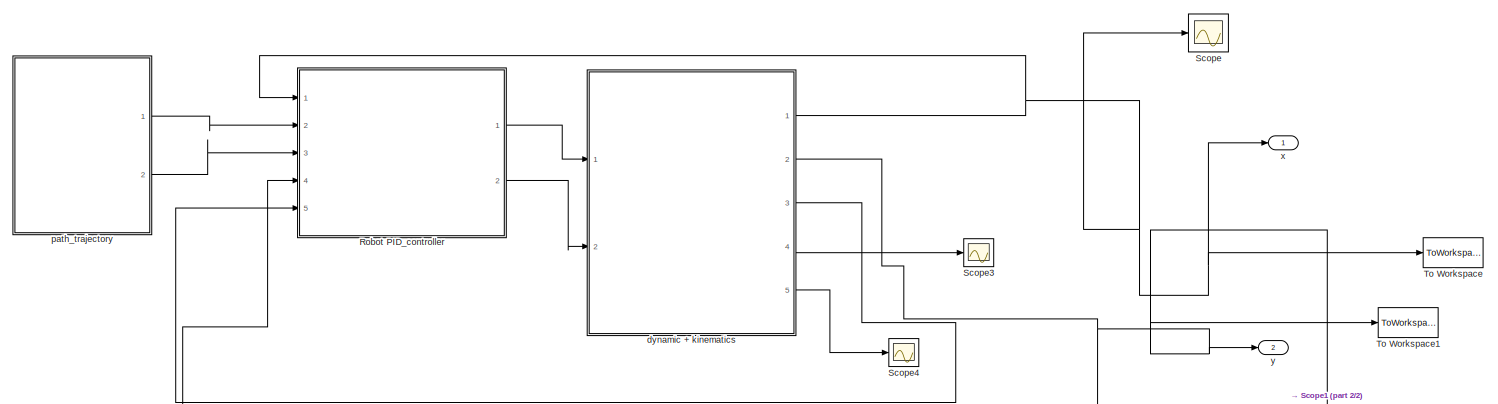
[diagram: root canvas - part 1/2, most of the canvas]
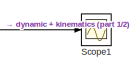
[diagram: root canvas - part 2/2, bottom right region]
MODEL slx_2c0997b387e1
KIND model
CONFIG AbsTol = auto
CONFIG EnableMultiTasking = off
CONFIG FixedStep = auto
CONFIG MaxStep = auto
CONFIG MinStep = auto
CONFIG RelTol = 1e-3
CONFIG SampleTimeConstraint = Unconstrained
CONFIG Solver = VariableStepAuto
CONFIG SolverName = VariableStepAuto
CONFIG StartTime = 0.0
CONFIG StopTime = 10.0
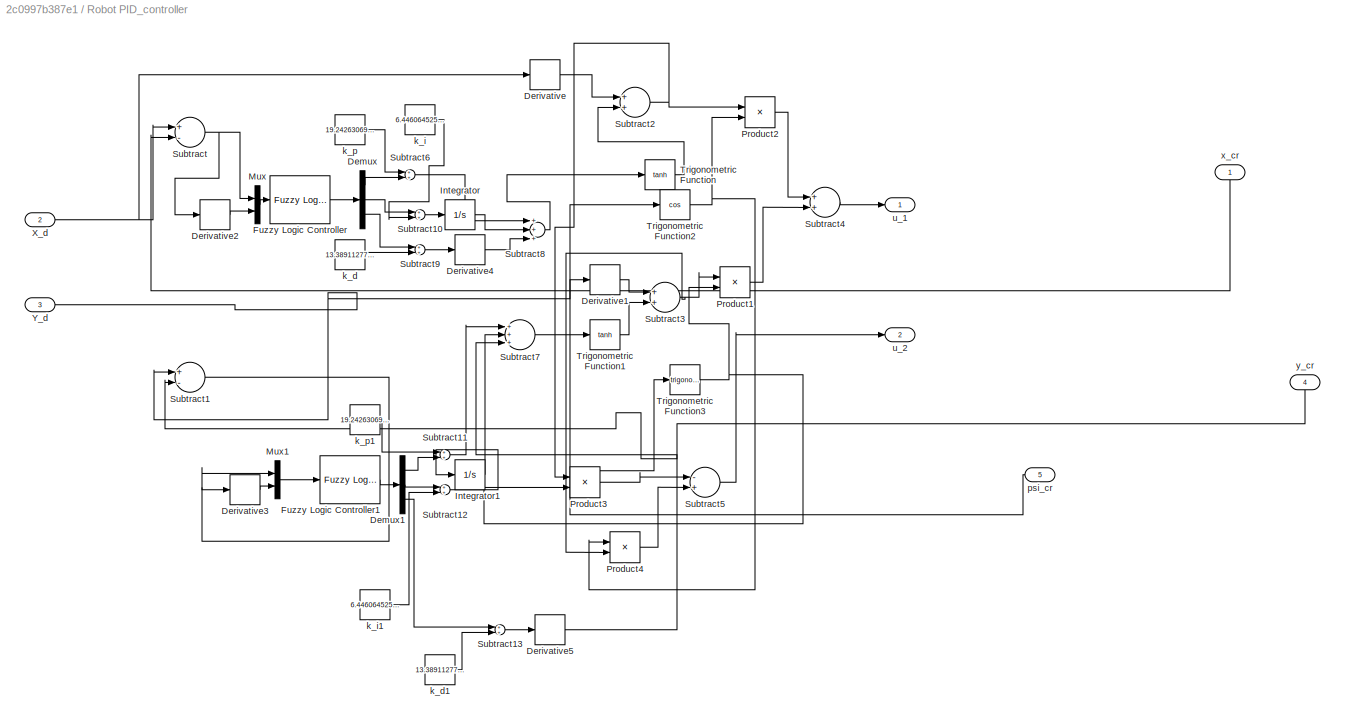
BLOCK [SubSystem] Robot PID_controller
  Ports = [5, 2]
  RequestExecContextInheritance = off
  Variant = off
BLOCK [Demux] Robot PID_controller/Demux
  DisplayOption = bar
  Outputs = 3
  Ports = [1, 3]
BLOCK [Demux] Robot PID_controller/Demux1
  DisplayOption = bar
  Outputs = 3
  Ports = [1, 3]
BLOCK [Derivative] Robot PID_controller/Derivative
BLOCK [Derivative] Robot PID_controller/Derivative1
BLOCK [Derivative] Robot PID_controller/Derivative2
BLOCK [Derivative] Robot PID_controller/Derivative3
BLOCK [Derivative] Robot PID_controller/Derivative4
BLOCK [Derivative] Robot PID_controller/Derivative5
BLOCK [Reference] Robot PID_controller/Fuzzy Logic Controller  REF=fuzblock/Fuzzy Logic   (lib defined in mdl_858b3b3e7478)
Controller
  Ports = [1, 1]
  SourceBlock = fuzblock/Fuzzy Logic \nController
  SourceType = FIS
BLOCK [Reference] Robot PID_controller/Fuzzy Logic Controller1  REF=fuzblock/Fuzzy Logic   (lib defined in mdl_858b3b3e7478)
Controller
  Ports = [1, 1]
  SourceBlock = fuzblock/Fuzzy Logic \nController
  SourceType = FIS
BLOCK [Integrator] Robot PID_controller/Integrator
  Ports = [1, 1]
BLOCK [Integrator] Robot PID_controller/Integrator1
  Ports = [1, 1]
BLOCK [Mux] Robot PID_controller/Mux
  DisplayOption = bar
  Inputs = 2
  Ports = [2, 1]
BLOCK [Mux] Robot PID_controller/Mux1
  DisplayOption = bar
  Inputs = 2
  Ports = [2, 1]
BLOCK [Product] Robot PID_controller/Product1
  InputSameDT = off
  OutDataTypeStr = Inherit: Inherit via internal rule
  Ports = [2, 1]
  RndMeth = Floor
  SaturateOnIntegerOverflow = off
BLOCK [Product] Robot PID_controller/Product2
  InputSameDT = off
  OutDataTypeStr = Inherit: Inherit via internal rule
  Ports = [2, 1]
  RndMeth = Floor
  SaturateOnIntegerOverflow = off
BLOCK [Product] Robot PID_controller/Product3
  InputSameDT = off
  OutDataTypeStr = Inherit: Inherit via internal rule
  Ports = [2, 1]
  RndMeth = Floor
  SaturateOnIntegerOverflow = off
BLOCK [Product] Robot PID_controller/Product4
  InputSameDT = off
  OutDataTypeStr = Inherit: Inherit via internal rule
  Ports = [2, 1]
  RndMeth = Floor
  SaturateOnIntegerOverflow = off
BLOCK [Sum] Robot PID_controller/Subtract
  InputSameDT = off
  Inputs = +-
  OutDataTypeStr = Inherit: Inherit via internal rule
  Ports = [2, 1]
  SaturateOnIntegerOverflow = off
BLOCK [Sum] Robot PID_controller/Subtract1
  InputSameDT = off
  Inputs = +-
  OutDataTypeStr = Inherit: Inherit via internal rule
  Ports = [2, 1]
  SaturateOnIntegerOverflow = off
BLOCK [Sum] Robot PID_controller/Subtract10
  InputSameDT = off
  OutDataTypeStr = Inherit: Inherit via internal rule
  Ports = [2, 1]
  SaturateOnIntegerOverflow = off
BLOCK [Sum] Robot PID_controller/Subtract11
  InputSameDT = off
  OutDataTypeStr = Inherit: Inherit via internal rule
  Ports = [2, 1]
  SaturateOnIntegerOverflow = off
BLOCK [Sum] Robot PID_controller/Subtract12
  InputSameDT = off
  OutDataTypeStr = Inherit: Inherit via internal rule
  Ports = [2, 1]
  SaturateOnIntegerOverflow = off
BLOCK [Sum] Robot PID_controller/Subtract13
  InputSameDT = off
  OutDataTypeStr = Inherit: Inherit via internal rule
  Ports = [2, 1]
  SaturateOnIntegerOverflow = off
BLOCK [Sum] Robot PID_controller/Subtract2
  InputSameDT = off
  OutDataTypeStr = Inherit: Inherit via internal rule
  Ports = [2, 1]
  SaturateOnIntegerOverflow = off
BLOCK [Sum] Robot PID_controller/Subtract3
  InputSameDT = off
  OutDataTypeStr = Inherit: Inherit via internal rule
  Ports = [2, 1]
  SaturateOnIntegerOverflow = off
BLOCK [Sum] Robot PID_controller/Subtract4
  InputSameDT = off
  OutDataTypeStr = Inherit: Inherit via internal rule
  Ports = [2, 1]
  SaturateOnIntegerOverflow = off
BLOCK [Sum] Robot PID_controller/Subtract5
  InputSameDT = off
  Inputs = -+
  OutDataTypeStr = Inherit: Inherit via internal rule
  Ports = [2, 1]
  SaturateOnIntegerOverflow = off
BLOCK [Sum] Robot PID_controller/Subtract6
  InputSameDT = off
  OutDataTypeStr = Inherit: Inherit via internal rule
  Ports = [2, 1]
  SaturateOnIntegerOverflow = off
BLOCK [Sum] Robot PID_controller/Subtract7
  InputSameDT = off
  Inputs = +++
  OutDataTypeStr = Inherit: Inherit via internal rule
  Ports = [3, 1]
  SaturateOnIntegerOverflow = off
BLOCK [Sum] Robot PID_controller/Subtract8
  InputSameDT = off
  Inputs = +++
  OutDataTypeStr = Inherit: Inherit via internal rule
  Ports = [3, 1]
  SaturateOnIntegerOverflow = off
BLOCK [Sum] Robot PID_controller/Subtract9
  InputSameDT = off
  OutDataTypeStr = Inherit: Inherit via internal rule
  Ports = [2, 1]
  SaturateOnIntegerOverflow = off
BLOCK [Trigonometry] Robot PID_controller/Trigonometric Function
  Operator = tanh
  Ports = [1, 1]
BLOCK [Trigonometry] Robot PID_controller/Trigonometric Function1
  Operator = tanh
  Ports = [1, 1]
BLOCK [Trigonometry] Robot PID_controller/Trigonometric Function2
  Operator = cos
  Ports = [1, 1]
BLOCK [Trigonometry] Robot PID_controller/Trigonometric Function3
  Ports = [1, 1]
BLOCK [Inport] Robot PID_controller/X_d
  IconDisplay = Port number
  Port = 2
BLOCK [Inport] Robot PID_controller/Y_d
  IconDisplay = Port number
  Port = 3
BLOCK [Constant] Robot PID_controller/k_d
  Value = 13.3891127705078
BLOCK [Constant] Robot PID_controller/k_d1
  Value = 13.3891127705078
BLOCK [Constant] Robot PID_controller/k_i
  Value = 6.44606452586056
BLOCK [Constant] Robot PID_controller/k_i1
  Value = 6.44606452586056
BLOCK [Constant] Robot PID_controller/k_p
  Value = 19.242630699917
BLOCK [Constant] Robot PID_controller/k_p1
  Value = 19.242630699917
BLOCK [Inport] Robot PID_controller/psi_cr
  IconDisplay = Port number
  Port = 5
BLOCK [Outport] Robot PID_controller/u_1
  IconDisplay = Port number
BLOCK [Outport] Robot PID_controller/u_2
  IconDisplay = Port number
  Port = 2
BLOCK [Inport] Robot PID_controller/x_cr
  IconDisplay = Port number
BLOCK [Inport] Robot PID_controller/y_cr
  IconDisplay = Port number
  Port = 4
BLOCK [Scope] Scope
  NumInputPorts = 1
  Ports = [1]
  ScopeSpecificationString = Simulink.scopes.TimeScopeBlockCfg('CurrentConfiguration', extmgr.ConfigurationSet(extmgr.Configuration('Core','General UI',true),extmgr.Configuration('Core','Source UI',true),extmgr.Configuration('Sources','WiredSimulink',true,'DataLoggingVariableName','ScopeData1','DataLoggingLimitDataPoints',true,'DataLoggingSaveFormat','Array','DataLoggingDecimation','1','DataLoggingDecimateData',true),extmgr.C...<+1507ch>
BLOCK [Scope] Scope1
  NumInputPorts = 1
  Ports = [1]
  ScopeSpecificationString = C++SS(StrPVP('SaveName','ScopeData2'),StrPVP('LimitDataPoints','on'),StrPVP('DataFormat','Array'),StrPVP('Decimation','1'),StrPVP('BlockParamSampleInput','off'))
BLOCK [Scope] Scope3
  NumInputPorts = 1
  Ports = [1]
  ScopeSpecificationString = Simulink.scopes.TimeScopeBlockCfg('CurrentConfiguration', extmgr.ConfigurationSet(extmgr.Configuration('Core','General UI',true),extmgr.Configuration('Core','Source UI',true),extmgr.Configuration('Sources','WiredSimulink',true,'DataLoggingVariableName','ScopeData1','DataLoggingLimitDataPoints',true,'DataLoggingSaveFormat','Array','DataLoggingDecimation','1','DataLoggingDecimateData',true),extmgr.C...<+1507ch>
BLOCK [Scope] Scope4
  NumInputPorts = 1
  Ports = [1]
  ScopeSpecificationString = Simulink.scopes.TimeScopeBlockCfg('CurrentConfiguration', extmgr.ConfigurationSet(extmgr.Configuration('Core','General UI',true),extmgr.Configuration('Core','Source UI',true),extmgr.Configuration('Sources','WiredSimulink',true,'DataLoggingVariableName','ScopeData2','DataLoggingLimitDataPoints',true,'DataLoggingSaveFormat','Array','DataLoggingDecimation','1','DataLoggingDecimateData',true),extmgr.C...<+1507ch>
BLOCK [ToWorkspace] To Workspace
  FixptAsFi = on
  MaxDataPoints = inf
  Ports = [1]
  SampleTime = -1
  Save2DSignal = 3-D array (concatenate along third dimension)
  VariableName = x
BLOCK [ToWorkspace] To Workspace1
  FixptAsFi = on
  MaxDataPoints = inf
  Ports = [1]
  SampleTime = -1
  Save2DSignal = 3-D array (concatenate along third dimension)
  VariableName = y
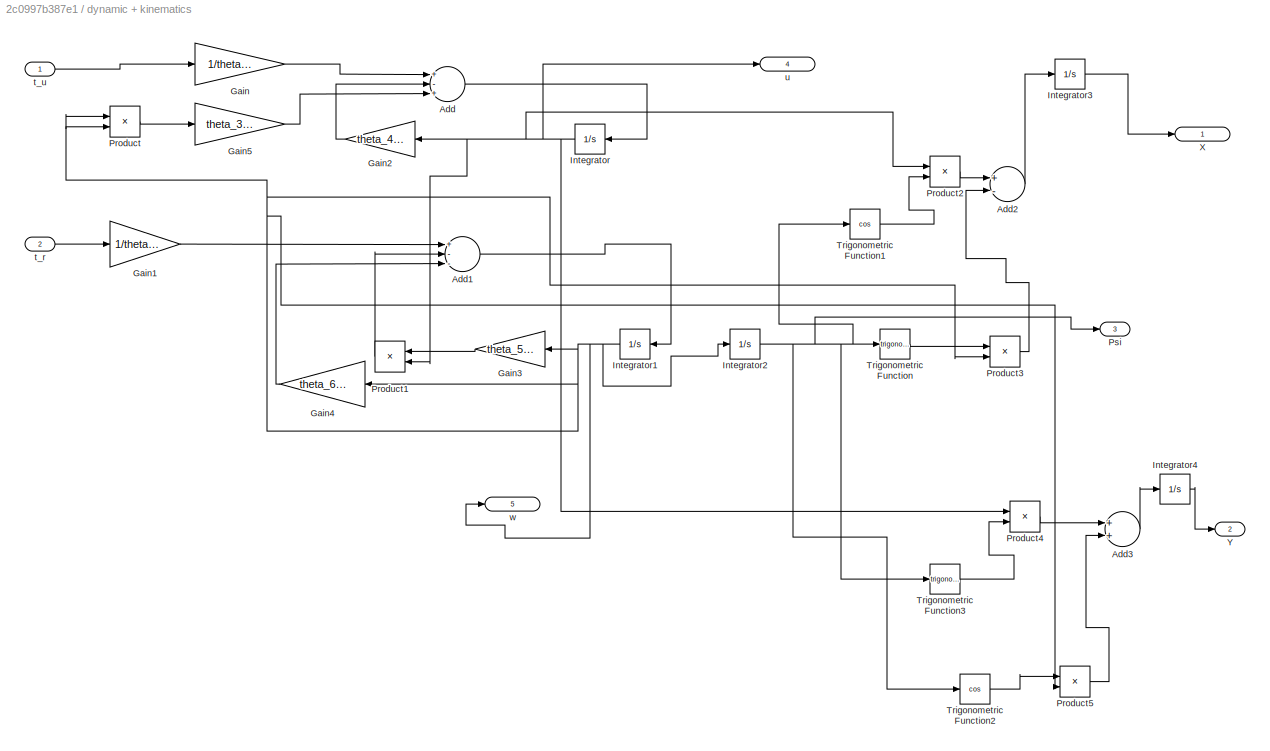
BLOCK [SubSystem] dynamic + kinematics 
  Ports = [2, 5]
  RequestExecContextInheritance = off
  Variant = off
BLOCK [Sum] dynamic + kinematics /Add
  InputSameDT = off
  Inputs = +-+
  OutDataTypeStr = Inherit: Inherit via internal rule
  Ports = [3, 1]
  SaturateOnIntegerOverflow = off
BLOCK [Sum] dynamic + kinematics /Add1
  InputSameDT = off
  Inputs = +--
  OutDataTypeStr = Inherit: Inherit via internal rule
  Ports = [3, 1]
  SaturateOnIntegerOverflow = off
BLOCK [Sum] dynamic + kinematics /Add2
  InputSameDT = off
  Inputs = +-
  OutDataTypeStr = Inherit: Inherit via internal rule
  Ports = [2, 1]
  SaturateOnIntegerOverflow = off
BLOCK [Sum] dynamic + kinematics /Add3
  InputSameDT = off
  OutDataTypeStr = Inherit: Inherit via internal rule
  Ports = [2, 1]
  SaturateOnIntegerOverflow = off
BLOCK [Gain] dynamic + kinematics /Gain
  Gain = 1/theta_1
  OutDataTypeStr = Inherit: Inherit via internal rule
  ParamDataTypeStr = Inherit: Inherit via internal rule
  SaturateOnIntegerOverflow = off
BLOCK [Gain] dynamic + kinematics /Gain1
  Gain = 1/theta_2
  OutDataTypeStr = Inherit: Inherit via internal rule
  ParamDataTypeStr = Inherit: Inherit via internal rule
  SaturateOnIntegerOverflow = off
BLOCK [Gain] dynamic + kinematics /Gain2
  Gain = theta_4_1
  OutDataTypeStr = Inherit: Inherit via internal rule
  ParamDataTypeStr = Inherit: Inherit via internal rule
  SaturateOnIntegerOverflow = off
BLOCK [Gain] dynamic + kinematics /Gain3
  Gain = theta_5_2
  OutDataTypeStr = Inherit: Inherit via internal rule
  ParamDataTypeStr = Inherit: Inherit via internal rule
  SaturateOnIntegerOverflow = off
BLOCK [Gain] dynamic + kinematics /Gain4
  Gain = theta_6_2
  OutDataTypeStr = Inherit: Inherit via internal rule
  ParamDataTypeStr = Inherit: Inherit via internal rule
  SaturateOnIntegerOverflow = off
BLOCK [Gain] dynamic + kinematics /Gain5
  Gain = theta_3_1
  OutDataTypeStr = Inherit: Inherit via internal rule
  ParamDataTypeStr = Inherit: Inherit via internal rule
  SaturateOnIntegerOverflow = off
BLOCK [Integrator] dynamic + kinematics /Integrator
  Ports = [1, 1]
BLOCK [Integrator] dynamic + kinematics /Integrator1
  Ports = [1, 1]
BLOCK [Integrator] dynamic + kinematics /Integrator2
  Ports = [1, 1]
BLOCK [Integrator] dynamic + kinematics /Integrator3
  Ports = [1, 1]
BLOCK [Integrator] dynamic + kinematics /Integrator4
  Ports = [1, 1]
BLOCK [Product] dynamic + kinematics /Product
  InputSameDT = off
  OutDataTypeStr = Inherit: Inherit via internal rule
  Ports = [2, 1]
  RndMeth = Floor
  SaturateOnIntegerOverflow = off
BLOCK [Product] dynamic + kinematics /Product1
  InputSameDT = off
  OutDataTypeStr = Inherit: Inherit via internal rule
  Ports = [2, 1]
  RndMeth = Floor
  SaturateOnIntegerOverflow = off
BLOCK [Product] dynamic + kinematics /Product2
  InputSameDT = off
  OutDataTypeStr = Inherit: Inherit via internal rule
  Ports = [2, 1]
  RndMeth = Floor
  SaturateOnIntegerOverflow = off
BLOCK [Product] dynamic + kinematics /Product3
  InputSameDT = off
  OutDataTypeStr = Inherit: Inherit via internal rule
  Ports = [2, 1]
  RndMeth = Floor
  SaturateOnIntegerOverflow = off
BLOCK [Product] dynamic + kinematics /Product4
  InputSameDT = off
  OutDataTypeStr = Inherit: Inherit via internal rule
  Ports = [2, 1]
  RndMeth = Floor
  SaturateOnIntegerOverflow = off
BLOCK [Product] dynamic + kinematics /Product5
  InputSameDT = off
  OutDataTypeStr = Inherit: Inherit via internal rule
  Ports = [2, 1]
  RndMeth = Floor
  SaturateOnIntegerOverflow = off
BLOCK [Outport] dynamic + kinematics /Psi
  IconDisplay = Port number
  Port = 3
BLOCK [Trigonometry] dynamic + kinematics /Trigonometric Function
  Ports = [1, 1]
BLOCK [Trigonometry] dynamic + kinematics /Trigonometric Function1
  Operator = cos
  Ports = [1, 1]
BLOCK [Trigonometry] dynamic + kinematics /Trigonometric Function2
  Operator = cos
  Ports = [1, 1]
BLOCK [Trigonometry] dynamic + kinematics /Trigonometric Function3
  Ports = [1, 1]
BLOCK [Outport] dynamic + kinematics /X
  IconDisplay = Port number
BLOCK [Outport] dynamic + kinematics /Y
  IconDisplay = Port number
  Port = 2
BLOCK [Inport] dynamic + kinematics /t_r
  IconDisplay = Port number
  Port = 2
BLOCK [Inport] dynamic + kinematics /t_u
  IconDisplay = Port number
BLOCK [Outport] dynamic + kinematics /u
  IconDisplay = Port number
  Port = 4
BLOCK [Outport] dynamic + kinematics /w
  IconDisplay = Port number
  Port = 5
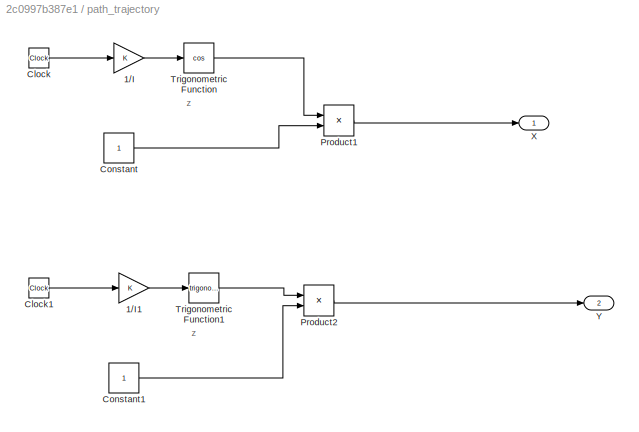
BLOCK [SubSystem] path_trajectory
  Ports = [0, 2]
  RequestExecContextInheritance = off
  Variant = off
BLOCK [Gain] path_trajectory/1//I
  OutDataTypeStr = Inherit: Inherit via internal rule
  ParamDataTypeStr = Inherit: Inherit via internal rule
  SaturateOnIntegerOverflow = off
BLOCK [Gain] path_trajectory/1//I1
  OutDataTypeStr = Inherit: Inherit via internal rule
  ParamDataTypeStr = Inherit: Inherit via internal rule
  SaturateOnIntegerOverflow = off
BLOCK [Clock] path_trajectory/Clock
BLOCK [Clock] path_trajectory/Clock1
BLOCK [Constant] path_trajectory/Constant
BLOCK [Constant] path_trajectory/Constant1
BLOCK [Product] path_trajectory/Product1
  InputSameDT = off
  OutDataTypeStr = Inherit: Inherit via internal rule
  Ports = [2, 1]
  RndMeth = Floor
  SaturateOnIntegerOverflow = off
BLOCK [Product] path_trajectory/Product2
  InputSameDT = off
  OutDataTypeStr = Inherit: Inherit via internal rule
  Ports = [2, 1]
  RndMeth = Floor
  SaturateOnIntegerOverflow = off
BLOCK [Trigonometry] path_trajectory/Trigonometric Function
  Operator = cos
  Ports = [1, 1]
BLOCK [Trigonometry] path_trajectory/Trigonometric Function1
  Ports = [1, 1]
BLOCK [Outport] path_trajectory/X
  IconDisplay = Port number
BLOCK [Outport] path_trajectory/Y
  IconDisplay = Port number
  Port = 2
BLOCK [Outport] x
  IconDisplay = Port number
BLOCK [Outport] y
  IconDisplay = Port number
  Port = 2
ANNOTATION path_trajectory: z
LINE Robot PID_controller/Demux1:1 -> Robot PID_controller/Subtract11:2
LINE Robot PID_controller/Demux1:2 -> Robot PID_controller/Subtract12:1
LINE Robot PID_controller/Demux1:3 -> Robot PID_controller/Subtract13:1
LINE Robot PID_controller/Demux:1 -> Robot PID_controller/Subtract6:2
LINE Robot PID_controller/Demux:2 -> Robot PID_controller/Subtract10:1
LINE Robot PID_controller/Demux:3 -> Robot PID_controller/Subtract9:1
LINE Robot PID_controller/Derivative1:1 -> Robot PID_controller/Subtract3:1
LINE Robot PID_controller/Derivative2:1 -> Robot PID_controller/Mux:2
LINE Robot PID_controller/Derivative3:1 -> Robot PID_controller/Mux1:2
LINE Robot PID_controller/Derivative4:1 -> Robot PID_controller/Subtract8:3
LINE Robot PID_controller/Derivative5:1 -> Robot PID_controller/Subtract7:3
LINE Robot PID_controller/Derivative:1 -> Robot PID_controller/Subtract2:1
LINE Robot PID_controller/Fuzzy Logic Controller1:1 -> Robot PID_controller/Demux1:1
LINE Robot PID_controller/Fuzzy Logic Controller:1 -> Robot PID_controller/Demux:1
LINE Robot PID_controller/Integrator1:1 -> Robot PID_controller/Subtract7:2
LINE Robot PID_controller/Integrator:1 -> Robot PID_controller/Subtract8:2
LINE Robot PID_controller/Mux1:1 -> Robot PID_controller/Fuzzy Logic Controller1:1
LINE Robot PID_controller/Mux:1 -> Robot PID_controller/Fuzzy Logic Controller:1
LINE Robot PID_controller/Product1:1 -> Robot PID_controller/Subtract4:2
LINE Robot PID_controller/Product2:1 -> Robot PID_controller/Subtract4:1
LINE Robot PID_controller/Product3:1 -> Robot PID_controller/Subtract5:1
LINE Robot PID_controller/Product4:1 -> Robot PID_controller/Subtract5:2
LINE Robot PID_controller/Subtract10:1 -> Robot PID_controller/Integrator:1
LINE Robot PID_controller/Subtract11:1 -> Robot PID_controller/Subtract7:1
LINE Robot PID_controller/Subtract12:1 -> Robot PID_controller/Integrator1:1
LINE Robot PID_controller/Subtract13:1 -> Robot PID_controller/Derivative5:1
NET Robot PID_controller/Subtract1:1 -> Robot PID_controller/Derivative3:1, Robot PID_controller/Mux1:1
NET Robot PID_controller/Subtract2:1 -> Robot PID_controller/Product2:1, Robot PID_controller/Product3:1
NET Robot PID_controller/Subtract3:1 -> Robot PID_controller/Product1:1, Robot PID_controller/Product4:2
LINE Robot PID_controller/Subtract4:1 -> Robot PID_controller/u_1:1
LINE Robot PID_controller/Subtract5:1 -> Robot PID_controller/u_2:1
LINE Robot PID_controller/Subtract6:1 -> Robot PID_controller/Subtract8:1
LINE Robot PID_controller/Subtract7:1 -> Robot PID_controller/Trigonometric Function1:1
LINE Robot PID_controller/Subtract8:1 -> Robot PID_controller/Trigonometric Function:1
LINE Robot PID_controller/Subtract9:1 -> Robot PID_controller/Derivative4:1
NET Robot PID_controller/Subtract:1 -> Robot PID_controller/Derivative2:1, Robot PID_controller/Mux:1
LINE Robot PID_controller/Trigonometric Function1:1 -> Robot PID_controller/Subtract3:2
NET Robot PID_controller/Trigonometric Function2:1 -> Robot PID_controller/Product2:2, Robot PID_controller/Product4:1
NET Robot PID_controller/Trigonometric Function3:1 -> Robot PID_controller/Product1:2, Robot PID_controller/Product3:2
LINE Robot PID_controller/Trigonometric Function:1 -> Robot PID_controller/Subtract2:2
NET Robot PID_controller/X_d:1 -> Robot PID_controller/Derivative:1, Robot PID_controller/Subtract:1
NET Robot PID_controller/Y_d:1 -> Robot PID_controller/Derivative1:1, Robot PID_controller/Subtract1:1
LINE Robot PID_controller/k_d1:1 -> Robot PID_controller/Subtract13:2
LINE Robot PID_controller/k_d:1 -> Robot PID_controller/Subtract9:2
LINE Robot PID_controller/k_i1:1 -> Robot PID_controller/Subtract12:2
LINE Robot PID_controller/k_i:1 -> Robot PID_controller/Subtract10:2
LINE Robot PID_controller/k_p1:1 -> Robot PID_controller/Subtract11:1
LINE Robot PID_controller/k_p:1 -> Robot PID_controller/Subtract6:1
NET Robot PID_controller/psi_cr:1 -> Robot PID_controller/Trigonometric Function2:1, Robot PID_controller/Trigonometric Function3:1
LINE Robot PID_controller/x_cr:1 -> Robot PID_controller/Subtract:2
LINE Robot PID_controller/y_cr:1 -> Robot PID_controller/Subtract1:2
LINE Robot PID_controller:1 -> dynamic + kinematics :1
LINE Robot PID_controller:2 -> dynamic + kinematics :2
LINE dynamic + kinematics /Add1:1 -> dynamic + kinematics /Integrator1:1
LINE dynamic + kinematics /Add2:1 -> dynamic + kinematics /Integrator3:1
LINE dynamic + kinematics /Add3:1 -> dynamic + kinematics /Integrator4:1
LINE dynamic + kinematics /Add:1 -> dynamic + kinematics /Integrator:1
LINE dynamic + kinematics /Gain1:1 -> dynamic + kinematics /Add1:1
LINE dynamic + kinematics /Gain2:1 -> dynamic + kinematics /Add:2
LINE dynamic + kinematics /Gain3:1 -> dynamic + kinematics /Product1:1
LINE dynamic + kinematics /Gain4:1 -> dynamic + kinematics /Add1:3
LINE dynamic + kinematics /Gain5:1 -> dynamic + kinematics /Add:3
LINE dynamic + kinematics /Gain:1 -> dynamic + kinematics /Add:1
NET dynamic + kinematics /Integrator1:1 -> dynamic + kinematics /Gain3:1, dynamic + kinematics /Gain4:1, dynamic + kinematics /Integrator2:1, dynamic + kinematics /Product3:2, dynamic + kinematics /Product5:2, dynamic + kinematics /Product:1, dynamic + kinematics /Product:2, dynamic + kinematics /w:1
NET dynamic + kinematics /Integrator2:1 -> dynamic + kinematics /Psi:1, dynamic + kinematics /Trigonometric Function1:1, dynamic + kinematics /Trigonometric Function2:1, dynamic + kinematics /Trigonometric Function3:1, dynamic + kinematics /Trigonometric Function:1
LINE dynamic + kinematics /Integrator3:1 -> dynamic + kinematics /X:1
LINE dynamic + kinematics /Integrator4:1 -> dynamic + kinematics /Y:1
NET dynamic + kinematics /Integrator:1 -> dynamic + kinematics /Gain2:1, dynamic + kinematics /Product1:2, dynamic + kinematics /Product2:1, dynamic + kinematics /Product4:1, dynamic + kinematics /u:1
LINE dynamic + kinematics /Product1:1 -> dynamic + kinematics /Add1:2
LINE dynamic + kinematics /Product2:1 -> dynamic + kinematics /Add2:1
LINE dynamic + kinematics /Product3:1 -> dynamic + kinematics /Add2:2
LINE dynamic + kinematics /Product4:1 -> dynamic + kinematics /Add3:1
LINE dynamic + kinematics /Product5:1 -> dynamic + kinematics /Add3:2
LINE dynamic + kinematics /Product:1 -> dynamic + kinematics /Gain5:1
LINE dynamic + kinematics /Trigonometric Function1:1 -> dynamic + kinematics /Product2:2
LINE dynamic + kinematics /Trigonometric Function2:1 -> dynamic + kinematics /Product5:1
LINE dynamic + kinematics /Trigonometric Function3:1 -> dynamic + kinematics /Product4:2
LINE dynamic + kinematics /Trigonometric Function:1 -> dynamic + kinematics /Product3:1
LINE dynamic + kinematics /t_r:1 -> dynamic + kinematics /Gain1:1
LINE dynamic + kinematics /t_u:1 -> dynamic + kinematics /Gain:1
NET dynamic + kinematics :1 -> Robot PID_controller:1, Scope:1, To Workspace:1, x:1
NET dynamic + kinematics :2 -> Robot PID_controller:4, Scope1:1, To Workspace1:1, y:1
LINE dynamic + kinematics :3 -> Robot PID_controller:5
LINE dynamic + kinematics :4 -> Scope3:1
LINE dynamic + kinematics :5 -> Scope4:1
LINE path_trajectory/1//I1:1 -> path_trajectory/Trigonometric Function1:1
LINE path_trajectory/1//I:1 -> path_trajectory/Trigonometric Function:1
LINE path_trajectory/Clock1:1 -> path_trajectory/1//I1:1
LINE path_trajectory/Clock:1 -> path_trajectory/1//I:1
LINE path_trajectory/Constant1:1 -> path_trajectory/Product2:2
LINE path_trajectory/Constant:1 -> path_trajectory/Product1:2
LINE path_trajectory/Product1:1 -> path_trajectory/X:1
LINE path_trajectory/Product2:1 -> path_trajectory/Y:1
LINE path_trajectory/Trigonometric Function1:1 -> path_trajectory/Product2:1
LINE path_trajectory/Trigonometric Function:1 -> path_trajectory/Product1:1
LINE path_trajectory:1 -> Robot PID_controller:2
LINE path_trajectory:2 -> Robot PID_controller:3
note: NET lines group one-source signal fan-out (src -> all destinations, sorted); 1:1 wires keep LINE
